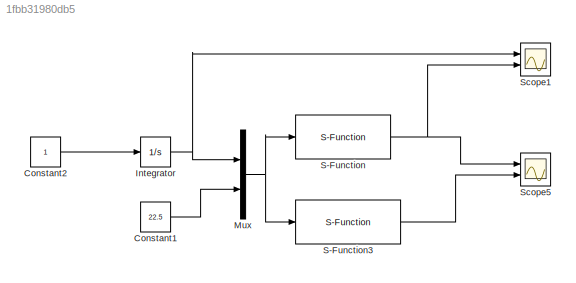
MODEL slx_1fbb31980db5
KIND model
BLOCK [Constant] Constant1
  Value = 22.5
BLOCK [Constant] Constant2
BLOCK [Integrator] Integrator
  LimitOutput = on
  LowerSaturationLimit = 0
  Ports = [1, 1]
BLOCK [Mux] Mux
  DisplayOption = bar
  Inputs = 2
  Ports = [2, 1]
BLOCK [S-Function] S-Function
  EnableBusSupport = off
  FunctionName = my_sfunction7a
  Ports = [1, 1]
BLOCK [S-Function] S-Function3
  EnableBusSupport = off
  FunctionName = my_sfunction7ate
  Ports = [1, 1]
BLOCK [Scope] Scope1
  DataFormat = StructureWithTime
  Floating = off
  LimitDataPoints = off
  NumInputPorts = 2
  Ports = [2]
  SampleTime = 0
  SaveToWorkspace = on
  ShowLegends = off
  YMax = 9.75~1800
  YMin = 7.5~600
  ZoomMode = xonly
BLOCK [Scope] Scope5
  DataFormat = StructureWithTime
  Floating = off
  LimitDataPoints = off
  NumInputPorts = 2
  Ports = [2]
  SampleTime = 0
  SaveName = ScopeData7
  SaveToWorkspace = on
  ShowLegends = off
  YMax = 9.75~1800
  YMin = 7.5~600
  ZoomMode = xonly
LINE Constant1:1 -> Mux:2
LINE Constant2:1 -> Integrator:1
NET Integrator:1 -> Mux:1, Scope1:1
NET Mux:1 -> S-Function3:1, S-Function:1
LINE S-Function3:1 -> Scope5:2
NET S-Function:1 -> Scope1:2, Scope5:1
note: NET lines group one-source signal fan-out (src -> all destinations, sorted); 1:1 wires keep LINE
